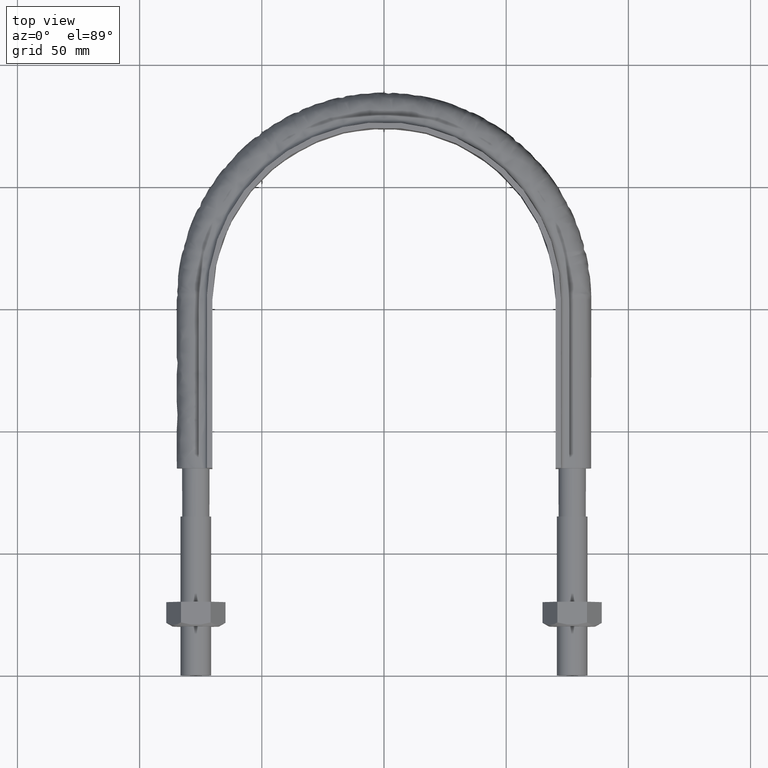
[diagram: clean part render]
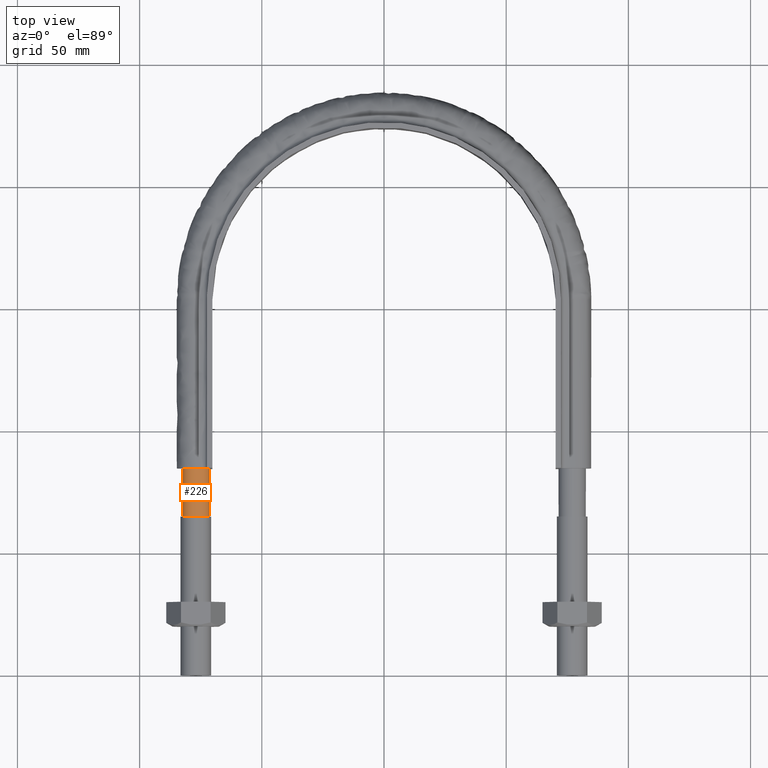
[diagram: same view with one face highlighted and labeled with its STEP entity id]
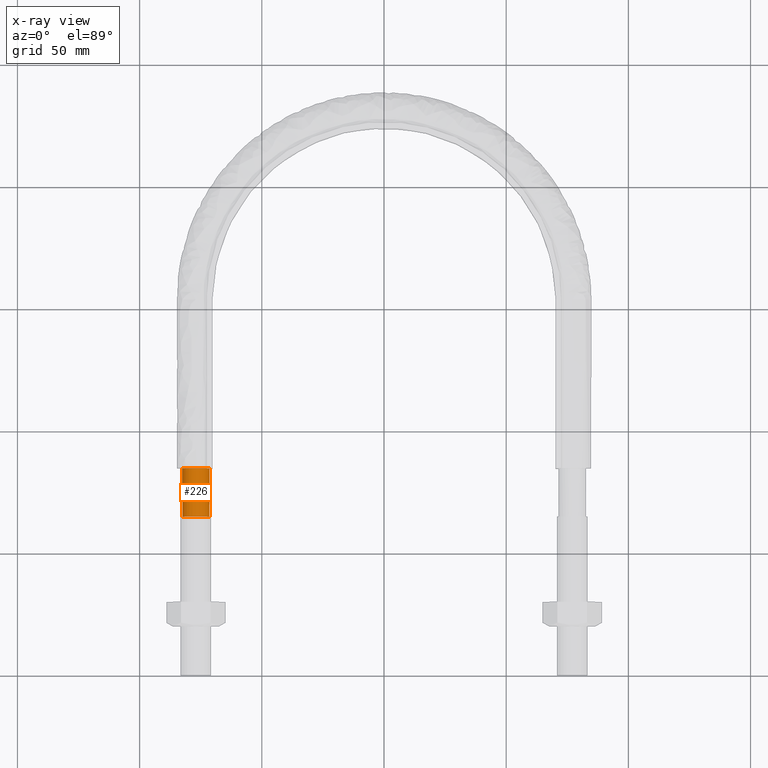
[diagram: x-ray of the same camera — body ghosted, the highlighted face saturated]
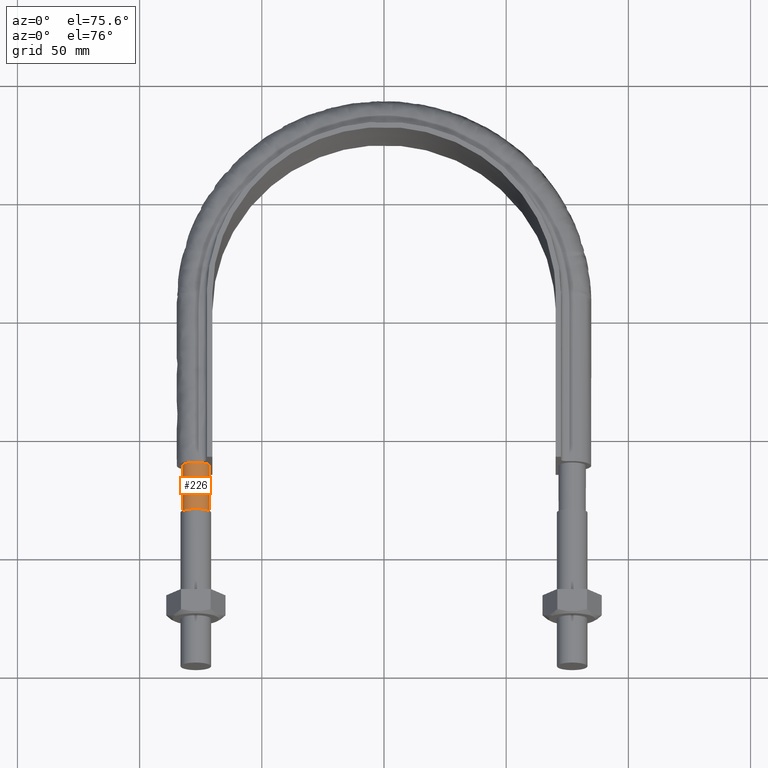
[diagram: same view with one face highlighted and labeled with its STEP entity id]
A machine part, top view. The second image highlights one B-rep face of the part: STEP entity #226.
The next image is the same camera in x-ray: the body ghosted, the highlighted face saturated — about 0% of this face is hidden behind the body in this view.
A second angle (auxiliary view) of the same face is appended — the face is thin or edge-on in the first view.
In plain terms, the highlighted cylindrical surface (bore or boss wall) has radius 5.6 mm, axis along (0, 1, -0).
Its self-contained STEP definition (entity closure, byte-faithful):
#226 = ADVANCED_FACE( '', ( #277, #278 ), #279, .T. );
#277 = FACE_OUTER_BOUND( '', #1050, .T. );
#278 = FACE_OUTER_BOUND( '', #1051, .T. );
#279 = CYLINDRICAL_SURFACE( '', #1052, 5.59999999999999 );
#1050 = EDGE_LOOP( '', ( #1367, #1368, #1369, #1370, #1371, #1372, #1373, #1374 ) );
#1051 = EDGE_LOOP( '', ( #1375 ) );
#1052 = AXIS2_PLACEMENT_3D( '', #1376, #1377, #1378 );
#1367 = ORIENTED_EDGE( '', *, *, #1613, .F. );
#1368 = ORIENTED_EDGE( '', *, *, #1614, .F. );
#1369 = ORIENTED_EDGE( '', *, *, #1615, .F. );
#1370 = ORIENTED_EDGE( '', *, *, #1616, .F. );
#1371 = ORIENTED_EDGE( '', *, *, #1617, .F. );
#1372 = ORIENTED_EDGE( '', *, *, #1618, .F. );
#1373 = ORIENTED_EDGE( '', *, *, #1619, .F. );
#1374 = ORIENTED_EDGE( '', *, *, #1620, .F. );
#1375 = ORIENTED_EDGE( '', *, *, #1621, .T. );
#1376 = CARTESIAN_POINT( '', ( -77.0000000000000, 84.7100000000000, -1.46064922852164E-014 ) );
#1377 = DIRECTION( '', ( 2.44921270764475E-016, 1.00000000000000, -3.06151588455594E-016 ) );
#1378 = DIRECTION( '', ( 1.00000000000000, -2.44921270764475E-016, 0.000000000000000 ) );
#1613 = EDGE_CURVE( '', #1705, #1706, #1707, .T. );
#1614 = EDGE_CURVE( '', #1708, #1705, #1709, .T. );
#1615 = EDGE_CURVE( '', #1710, #1708, #1711, .T. );
#1616 = EDGE_CURVE( '', #1712, #1710, #1713, .T. );
#1617 = EDGE_CURVE( '', #1714, #1712, #1715, .T. );
#1618 = EDGE_CURVE( '', #1716, #1714, #1717, .T. );
#1619 = EDGE_CURVE( '', #1718, #1716, #1719, .T. );
#1620 = EDGE_CURVE( '', #1706, #1718, #1720, .T. );
#1621 = EDGE_CURVE( '', #1721, #1721, #1722, .F. );
#1705 = VERTEX_POINT( '', #1999 );
#1706 = VERTEX_POINT( '', #2000 );
#1707 = B_SPLINE_CURVE_WITH_KNOTS( '', 3, ( #2001, #2002, #2003, #2004 ), .UNSPECIFIED., .F., .F., ( 4, 4 ), ( 0.000000000000000, 1.00000000000000 ), .UNSPECIFIED. );
#1708 = VERTEX_POINT( '', #2005 );
#1709 = B_SPLINE_CURVE_WITH_KNOTS( '', 3, ( #2006, #2007, #2008, #2009 ), .UNSPECIFIED., .F., .F., ( 4, 4 ), ( 0.000000000000000, 1.00000000000000 ), .UNSPECIFIED. );
#1710 = VERTEX_POINT( '', #2010 );
#1711 = B_SPLINE_CURVE_WITH_KNOTS( '', 3, ( #2011, #2012, #2013, #2014 ), .UNSPECIFIED., .F., .F., ( 4, 4 ), ( 0.000000000000000, 1.00000000000000 ), .UNSPECIFIED. );
#1712 = VERTEX_POINT( '', #2015 );
#1713 = B_SPLINE_CURVE_WITH_KNOTS( '', 3, ( #2016, #2017, #2018, #2019 ), .UNSPECIFIED., .F., .F., ( 4, 4 ), ( 0.000000000000000, 1.00000000000000 ), .UNSPECIFIED. );
#1714 = VERTEX_POINT( '', #2020 );
#1715 = B_SPLINE_CURVE_WITH_KNOTS( '', 3, ( #2021, #2022, #2023, #2024 ), .UNSPECIFIED., .F., .F., ( 4, 4 ), ( 0.000000000000000, 1.00000000000000 ), .UNSPECIFIED. );
#1716 = VERTEX_POINT( '', #2025 );
#1717 = B_SPLINE_CURVE_WITH_KNOTS( '', 3, ( #2026, #2027, #2028, #2029 ), .UNSPECIFIED., .F., .F., ( 4, 4 ), ( 0.000000000000000, 1.00000000000000 ), .UNSPECIFIED. );
#1718 = VERTEX_POINT( '', #2030 );
#1719 = B_SPLINE_CURVE_WITH_KNOTS( '', 3, ( #2031, #2032, #2033, #2034 ), .UNSPECIFIED., .F., .F., ( 4, 4 ), ( 0.000000000000000, 1.00000000000000 ), .UNSPECIFIED. );
#1720 = B_SPLINE_CURVE_WITH_KNOTS( '', 3, ( #2035, #2036, #2037, #2038 ), .UNSPECIFIED., .F., .F., ( 4, 4 ), ( 0.000000000000000, 1.00000000000000 ), .UNSPECIFIED. );
#1721 = VERTEX_POINT( '', #2039 );
#1722 = CIRCLE( '', #2040, 5.59999999999999 );
#1999 = CARTESIAN_POINT( '', ( -73.0402020253695, 84.7100000000000, 3.95979797465885 ) );
#2000 = CARTESIAN_POINT( '', ( -71.4000000000000, 84.7100000000001, 6.75566890369075E-014 ) );
#2001 = CARTESIAN_POINT( '', ( -73.0402020253695, 84.7100000000001, 3.95979797465885 ) );
#2002 = CARTESIAN_POINT( '', ( -72.0058874503101, 84.7100000000001, 2.92548339960728 ) );
#2003 = CARTESIAN_POINT( '', ( -71.4000000000000, 84.7100000000001, 1.46274169980364 ) );
#2004 = CARTESIAN_POINT( '', ( -71.4000000000000, 84.7100000000001, 3.25260651745651E-016 ) );
#2005 = CARTESIAN_POINT( '', ( -76.9999999999997, 84.7100000000000, 5.59999999999998 ) );
#2006 = CARTESIAN_POINT( '', ( -77.0000000000070, 84.7100000000001, 5.59999999999976 ) );
#2007 = CARTESIAN_POINT( '', ( -75.5372583002129, 84.7100000000001, 5.60000000000132 ) );
#2008 = CARTESIAN_POINT( '', ( -74.0745166004194, 84.7100000000001, 4.99411254970091 ) );
#2009 = CARTESIAN_POINT( '', ( -73.0402020253695, 84.7100000000001, 3.95979797465885 ) );
#2010 = CARTESIAN_POINT( '', ( -80.9597979746449, 84.7100000000000, 3.95979797464440 ) );
#2011 = CARTESIAN_POINT( '', ( -80.9597979746449, 84.7100000000001, 3.95979797464446 ) );
#2012 = CARTESIAN_POINT( '', ( -79.9254833995941, 84.7100000000001, 4.99411254969539 ) );
#2013 = CARTESIAN_POINT( '', ( -78.4627416997969, 84.7100000000001, 5.60000000000005 ) );
#2014 = CARTESIAN_POINT( '', ( -76.9999999999998, 84.7100000000001, 5.59999999999999 ) );
#2015 = CARTESIAN_POINT( '', ( -82.6000000000000, 84.7100000000000, 1.41965139748640E-014 ) );
#2016 = CARTESIAN_POINT( '', ( -82.6000000000000, 84.7100000000001, 1.80111829229320E-011 ) );
#2017 = CARTESIAN_POINT( '', ( -82.5999999999950, 84.7100000000001, 1.46274169980886 ) );
#2018 = CARTESIAN_POINT( '', ( -81.9941125496912, 84.7100000000001, 2.92548339959793 ) );
#2019 = CARTESIAN_POINT( '', ( -80.9597979746449, 84.7100000000001, 3.95979797464440 ) );
#2020 = CARTESIAN_POINT( '', ( -80.9597979746507, 84.7100000000000, -3.95979797463863 ) );
#2021 = CARTESIAN_POINT( '', ( -80.9597979746555, 84.7100000000001, -3.95979797463413 ) );
#2022 = CARTESIAN_POINT( '', ( -81.9941125497033, 84.7100000000001, -2.92548339958090 ) );
#2023 = CARTESIAN_POINT( '', ( -82.6000000000050, 84.7100000000001, -1.46274169978201 ) );
#2024 = CARTESIAN_POINT( '', ( -82.6000000000000, 84.7100000000001, 1.81435640081927E-011 ) );
#2025 = CARTESIAN_POINT( '', ( -77.0000000000206, 84.7100000000000, -5.60000000000001 ) );
#2026 = CARTESIAN_POINT( '', ( -77.0000000000237, 84.7100000000001, -5.60000000000009 ) );
#2027 = CARTESIAN_POINT( '', ( -78.4627416998150, 84.7100000000001, -5.59999999999370 ) );
#2028 = CARTESIAN_POINT( '', ( -79.9254833996044, 84.7100000000001, -4.99411254968819 ) );
#2029 = CARTESIAN_POINT( '', ( -80.9597979746507, 84.7100000000001, -3.95979797463862 ) );
#2030 = CARTESIAN_POINT( '', ( -73.0402020253552, 84.7100000000000, -3.95979797464450 ) );
#2031 = CARTESIAN_POINT( '', ( -73.0402020253841, 84.7100000000001, -3.95979797467384 ) );
#2032 = CARTESIAN_POINT( '', ( -74.0745166004367, 84.7100000000001, -4.99411254971098 ) );
#2033 = CARTESIAN_POINT( '', ( -75.5372583002280, 84.7100000000001, -5.60000000000569 ) );
#2034 = CARTESIAN_POINT( '', ( -77.0000000000206, 84.7100000000001, -5.59999999999999 ) );
#2035 = CARTESIAN_POINT( '', ( -71.3999999999996, 84.7100000000001, -1.21233318522984E-011 ) );
#2036 = CARTESIAN_POINT( '', ( -71.4000000000023, 84.7100000000001, -1.46274169981374 ) );
#2037 = CARTESIAN_POINT( '', ( -72.0058874503138, 84.7100000000001, -2.92548339961628 ) );
#2038 = CARTESIAN_POINT( '', ( -73.0402020253790, 84.7100000000001, -3.95979797466840 ) );
#2039 = CARTESIAN_POINT( '', ( -77.0000000000000, 65.0000000000000, 5.59999999999999 ) );
#2040 = AXIS2_PLACEMENT_3D( '', #2333, #2334, #2335 );
#2333 = CARTESIAN_POINT( '', ( -77.0000000000000, 65.0000000000000, -8.57224447675664E-015 ) );
#2334 = DIRECTION( '', ( -2.44921270764475E-016, -1.00000000000000, 3.06151588455594E-016 ) );
#2335 = DIRECTION( '', ( 3.74915180455534E-032, 3.06151588455594E-016, 1.00000000000000 ) );